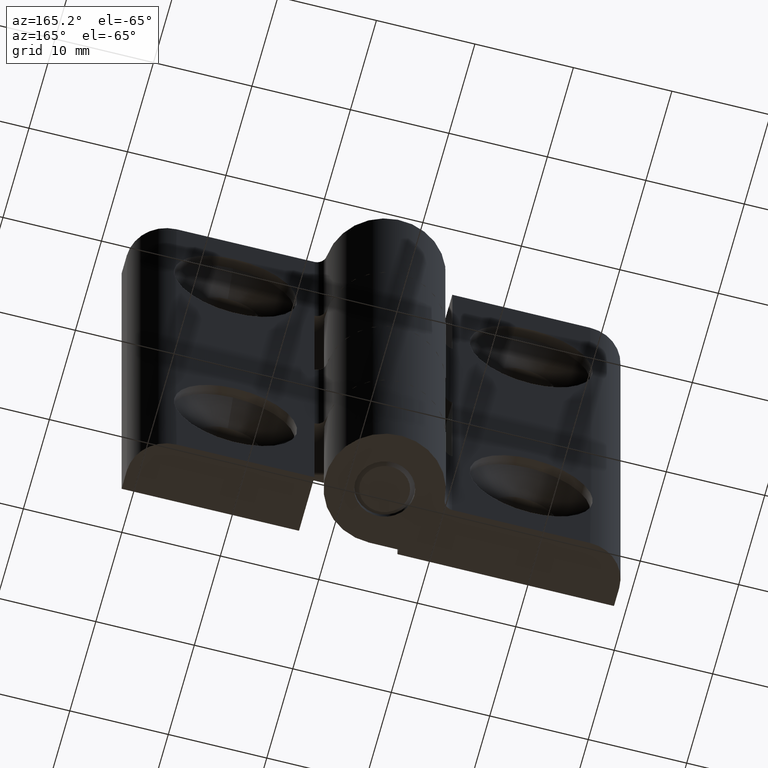
[diagram: clean part render]
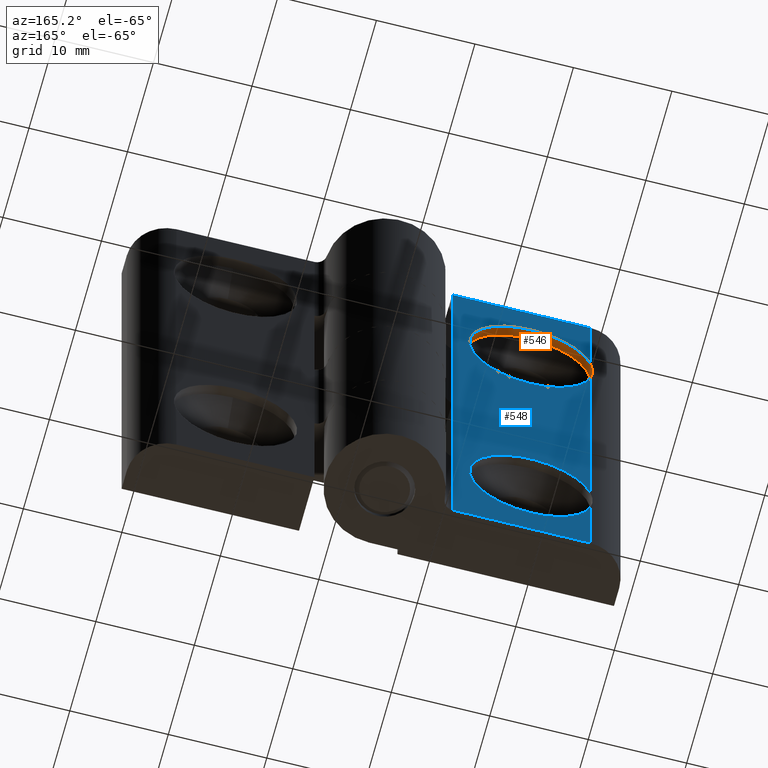
[diagram: same view with the hole feature highlighted: cylindrical wall and planar end face, labeled with their STEP entity ids]
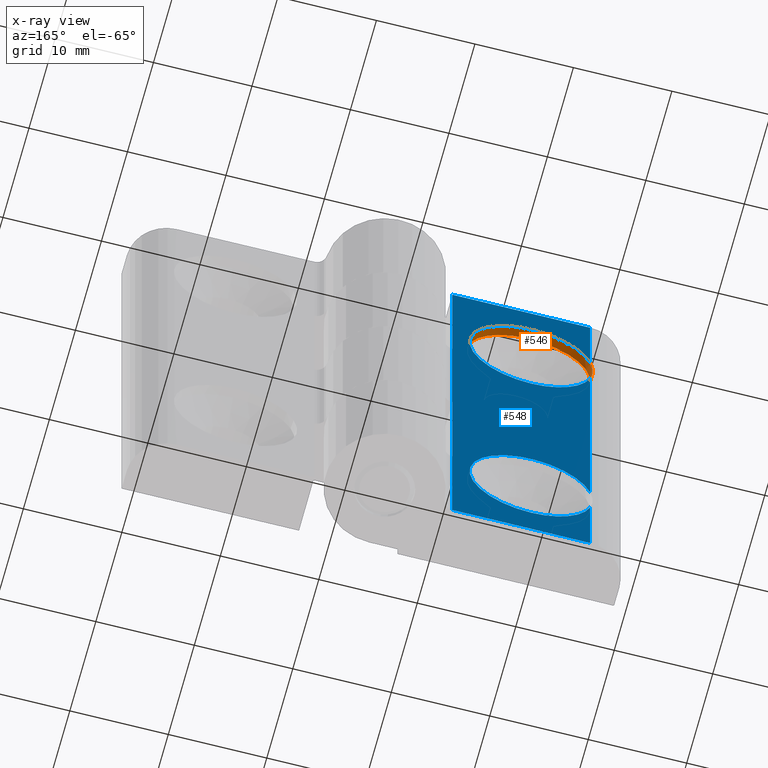
[diagram: x-ray of the same camera — body ghosted, the hole faces saturated]
A machine part, auxiliary view. The highlighted faces form one hole feature of diameter 12.5 mm: the cylindrical wall (entity #546, orange) and its adjacent planar end face (entity #548, blue) — they share a circular edge in the B-rep.
The next image is the same camera in x-ray (body ghosted, the hole faces saturated) — the bore reads through the body.
Wall:
#143=FACE_BOUND('',#198,.T.);
#158=B_SPLINE_CURVE_WITH_KNOTS('',3,(#836,#837,#838,#839,#840,#841),
 .UNSPECIFIED.,.F.,.F.,(4,2,4),(0.787149185360135,0.957185667053921,1.12722214874771),
 .UNSPECIFIED.);
#162=FACE_OUTER_BOUND('',#197,.T.);
#197=EDGE_LOOP('',(#396));
#198=EDGE_LOOP('',(#397,#398));
#244=CIRCLE('',#585,6.25);
#245=CIRCLE('',#587,6.25);
#271=VERTEX_POINT('',#831);
#272=VERTEX_POINT('',#834);
#273=VERTEX_POINT('',#835);
#323=EDGE_CURVE('',#271,#271,#244,.T.);
#324=EDGE_CURVE('',#272,#273,#158,.F.);
#325=EDGE_CURVE('',#272,#273,#245,.F.);
#396=ORIENTED_EDGE('',*,*,#323,.T.);
#397=ORIENTED_EDGE('',*,*,#324,.F.);
#398=ORIENTED_EDGE('',*,*,#325,.T.);
#533=CYLINDRICAL_SURFACE('',#586,6.25);
#546=ADVANCED_FACE('',(#162,#143),#533,.F.);
#585=AXIS2_PLACEMENT_3D('',#832,#657,#658);
#586=AXIS2_PLACEMENT_3D('',#833,#659,#660);
#587=AXIS2_PLACEMENT_3D('',#842,#661,#662);
#657=DIRECTION('center_axis',(0.,-1.,0.));
#658=DIRECTION('ref_axis',(0.,0.,-1.));
#659=DIRECTION('center_axis',(0.,1.,0.));
#660=DIRECTION('ref_axis',(0.,0.,-1.));
#661=DIRECTION('center_axis',(0.,-1.,0.));
#662=DIRECTION('ref_axis',(0.,0.,-1.));
#831=CARTESIAN_POINT('',(-15.,5.,8.75));
#832=CARTESIAN_POINT('Origin',(-15.,5.,15.));
#833=CARTESIAN_POINT('Origin',(-15.,0.,15.));
#834=CARTESIAN_POINT('',(-21.,6.,16.75));
#835=CARTESIAN_POINT('',(-21.,6.,13.25));
#836=CARTESIAN_POINT('Ctrl Pts',(-21.,6.,13.25));
#837=CARTESIAN_POINT('Ctrl Pts',(-21.1692973273697,6.,13.8304479795534));
#838=CARTESIAN_POINT('Ctrl Pts',(-21.25,5.99217985566783,14.4332117276874));
#839=CARTESIAN_POINT('Ctrl Pts',(-21.25,5.99217985566783,15.5667882723126));
#840=CARTESIAN_POINT('Ctrl Pts',(-21.1692973273697,6.,16.1695520204466));
#841=CARTESIAN_POINT('Ctrl Pts',(-21.,6.,16.75));
#842=CARTESIAN_POINT('Origin',(-15.,6.,15.));
End face:
#44=LINE('',#869,#87);
#45=LINE('',#871,#88);
#46=LINE('',#873,#89);
#47=LINE('',#875,#90);
#48=LINE('',#877,#91);
#49=LINE('',#879,#92);
#50=LINE('',#881,#93);
#51=LINE('',#883,#94);
#52=LINE('',#884,#95);
#53=LINE('',#885,#96);
#54=LINE('',#887,#97);
#55=LINE('',#888,#98);
#87=VECTOR('',#679,12.5);
#88=VECTOR('',#680,0.0178799781155306);
#89=VECTOR('',#681,12.5);
#90=VECTOR('',#682,0.0178799781155306);
#91=VECTOR('',#683,12.5);
#92=VECTOR('',#684,0.0178799781155306);
#93=VECTOR('',#685,12.5);
#94=VECTOR('',#686,14.0178799781155);
#95=VECTOR('',#687,8.25000000000001);
#96=VECTOR('',#688,26.5);
#97=VECTOR('',#689,8.25);
#98=VECTOR('',#690,14.);
#121=PLANE('',#590);
#164=FACE_OUTER_BOUND('',#202,.T.);
#202=EDGE_LOOP('',(#411,#412,#413,#414,#415,#416,#417,#418,#419,#420,#421,
#422,#423,#424));
#241=CIRCLE('',#580,6.25);
#245=CIRCLE('',#587,6.25);
#267=VERTEX_POINT('',#816);
#268=VERTEX_POINT('',#817);
#272=VERTEX_POINT('',#834);
#273=VERTEX_POINT('',#835);
#285=VERTEX_POINT('',#867);
#286=VERTEX_POINT('',#868);
#287=VERTEX_POINT('',#870);
#288=VERTEX_POINT('',#872);
#289=VERTEX_POINT('',#874);
#290=VERTEX_POINT('',#876);
#291=VERTEX_POINT('',#878);
#292=VERTEX_POINT('',#880);
#293=VERTEX_POINT('',#882);
#294=VERTEX_POINT('',#886);
#320=EDGE_CURVE('',#267,#268,#241,.F.);
#325=EDGE_CURVE('',#272,#273,#245,.F.);
#337=EDGE_CURVE('',#285,#286,#44,.T.);
#338=EDGE_CURVE('',#287,#285,#45,.T.);
#339=EDGE_CURVE('',#287,#288,#46,.T.);
#340=EDGE_CURVE('',#288,#289,#47,.T.);
#341=EDGE_CURVE('',#289,#290,#48,.T.);
#342=EDGE_CURVE('',#291,#290,#49,.T.);
#343=EDGE_CURVE('',#292,#291,#50,.T.);
#344=EDGE_CURVE('',#292,#293,#51,.T.);
#345=EDGE_CURVE('',#268,#293,#52,.T.);
#346=EDGE_CURVE('',#273,#267,#53,.T.);
#347=EDGE_CURVE('',#294,#272,#54,.T.);
#348=EDGE_CURVE('',#286,#294,#55,.T.);
#411=ORIENTED_EDGE('',*,*,#337,.F.);
#412=ORIENTED_EDGE('',*,*,#338,.F.);
#413=ORIENTED_EDGE('',*,*,#339,.T.);
#414=ORIENTED_EDGE('',*,*,#340,.T.);
#415=ORIENTED_EDGE('',*,*,#341,.T.);
#416=ORIENTED_EDGE('',*,*,#342,.F.);
#417=ORIENTED_EDGE('',*,*,#343,.F.);
#418=ORIENTED_EDGE('',*,*,#344,.T.);
#419=ORIENTED_EDGE('',*,*,#345,.F.);
#420=ORIENTED_EDGE('',*,*,#320,.F.);
#421=ORIENTED_EDGE('',*,*,#346,.F.);
#422=ORIENTED_EDGE('',*,*,#325,.F.);
#423=ORIENTED_EDGE('',*,*,#347,.F.);
#424=ORIENTED_EDGE('',*,*,#348,.F.);
#548=ADVANCED_FACE('',(#164),#121,.F.);
#580=AXIS2_PLACEMENT_3D('',#824,#647,#648);
#587=AXIS2_PLACEMENT_3D('',#842,#661,#662);
#590=AXIS2_PLACEMENT_3D('',#866,#677,#678);
#647=DIRECTION('center_axis',(0.,-1.,0.));
#648=DIRECTION('ref_axis',(0.,0.,-1.));
#661=DIRECTION('center_axis',(0.,-1.,0.));
#662=DIRECTION('ref_axis',(0.,0.,-1.));
#677=DIRECTION('center_axis',(0.,-1.,0.));
#678=DIRECTION('ref_axis',(0.,0.,-1.));
#679=DIRECTION('',(0.,0.,1.));
#680=DIRECTION('',(-1.,0.,0.));
#681=DIRECTION('',(0.,0.,-1.));
#682=DIRECTION('',(-1.,0.,0.));
#683=DIRECTION('',(0.,0.,-1.));
#684=DIRECTION('',(-1.,0.,0.));
#685=DIRECTION('',(0.,0.,1.));
#686=DIRECTION('',(-1.,0.,0.));
#687=DIRECTION('',(0.,0.,-1.));
#688=DIRECTION('',(0.,0.,-1.));
#689=DIRECTION('',(0.,0.,-1.));
#690=DIRECTION('',(-1.,0.,0.));
#816=CARTESIAN_POINT('',(-21.,6.,-13.25));
#817=CARTESIAN_POINT('',(-21.,6.,-16.75));
#824=CARTESIAN_POINT('Origin',(-15.,6.,-15.));
#834=CARTESIAN_POINT('',(-21.,6.,16.75));
#835=CARTESIAN_POINT('',(-21.,6.,13.25));
#842=CARTESIAN_POINT('Origin',(-15.,6.,15.));
#866=CARTESIAN_POINT('Origin',(-3.,6.,25.));
#867=CARTESIAN_POINT('',(-7.,6.,12.5));
#868=CARTESIAN_POINT('',(-7.,6.,25.));
#869=CARTESIAN_POINT('',(-7.,6.,25.));
#870=CARTESIAN_POINT('',(-6.98212002188447,6.,12.5));
#871=CARTESIAN_POINT('',(-3.,6.,12.5));
#872=CARTESIAN_POINT('',(-6.98212002188447,6.,0.));
#873=CARTESIAN_POINT('',(-6.98212002188447,6.,12.5));
#874=CARTESIAN_POINT('',(-7.,6.,0.));
#875=CARTESIAN_POINT('',(-3.,6.,0.));
#876=CARTESIAN_POINT('',(-7.,6.,-12.5));
#877=CARTESIAN_POINT('',(-7.,6.,25.));
#878=CARTESIAN_POINT('',(-6.98212002188447,6.,-12.5));
#879=CARTESIAN_POINT('',(-3.,6.,-12.5));
#880=CARTESIAN_POINT('',(-6.98212002188447,6.,-25.));
#881=CARTESIAN_POINT('',(-6.98212002188447,6.,-25.));
#882=CARTESIAN_POINT('',(-21.,6.,-25.));
#883=CARTESIAN_POINT('',(-3.,6.,-25.));
#884=CARTESIAN_POINT('',(-21.,6.,25.));
#885=CARTESIAN_POINT('',(-21.,6.,25.));
#886=CARTESIAN_POINT('',(-21.,6.,25.));
#887=CARTESIAN_POINT('',(-21.,6.,25.));
#888=CARTESIAN_POINT('',(-3.,6.,25.));